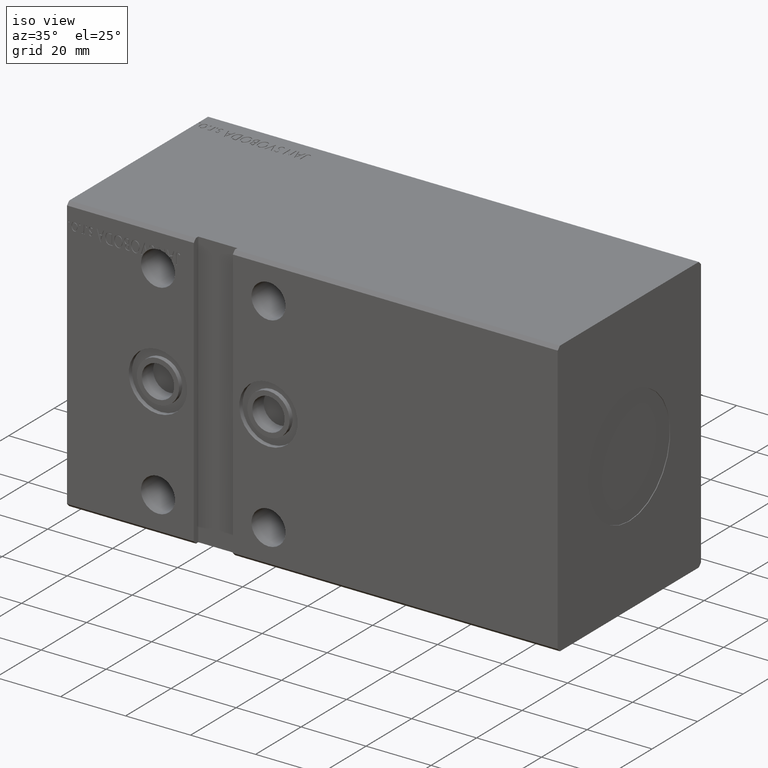
[diagram: clean part render]
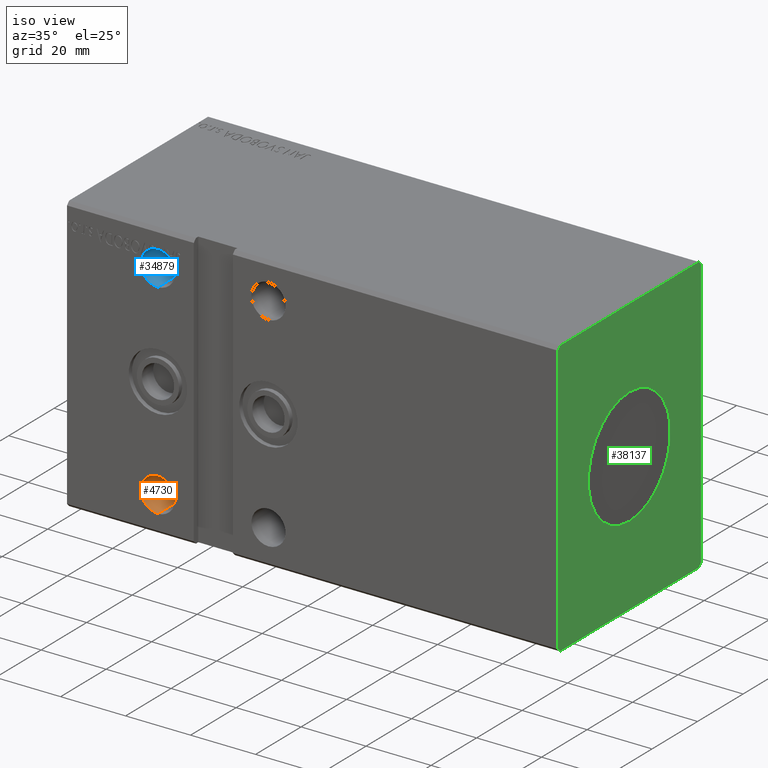
[diagram: same view with three faces highlighted in distinct colors, each labeled with its STEP entity id]
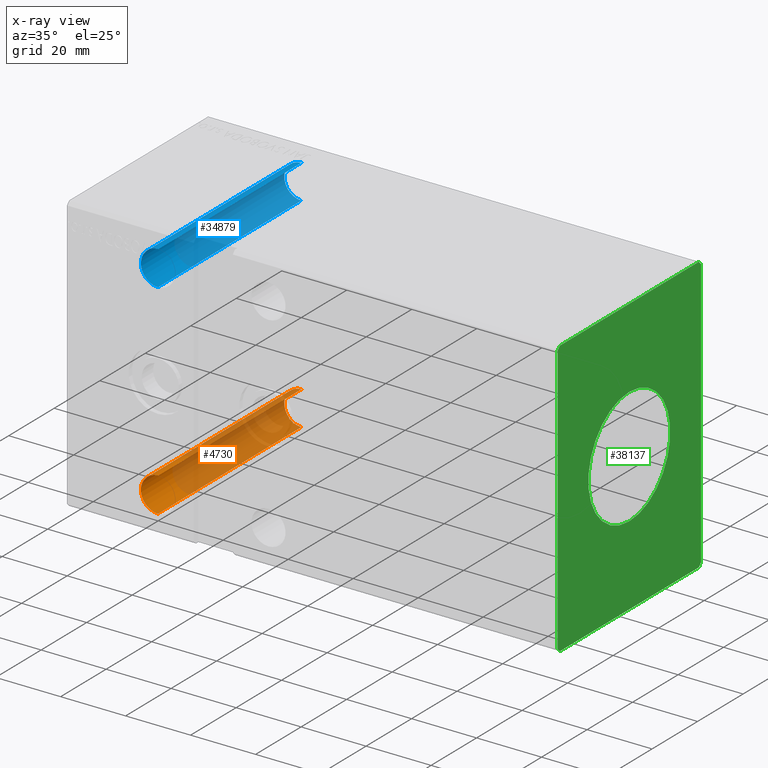
[diagram: x-ray of the same camera — body ghosted, the three highlighted faces saturated]
A machine part, iso view with three faces highlighted in distinct colors.
The next image is the same camera in x-ray (body ghosted, the three faces saturated) — at least one of them is partly hidden behind the body in this view.
Their STEP definitions:

[orange] entity #4730 — the highlighted cylindrical surface (edge-blend (fillet) strip) has radius 5.25 mm, axis along (-0, -1, -0).
#89 = CARTESIAN_POINT ( 'NONE',  ( 25.77627583546970413, 31.30000000000104166, -36.25579129484084717 ) ) ;
#557 = AXIS2_PLACEMENT_3D ( 'NONE', #18925, #15227, #40317 ) ;
#632 = VERTEX_POINT ( 'NONE', #89 ) ;
#848 = EDGE_CURVE ( 'NONE', #32619, #632, #28772, .T. ) ;
#1013 = DIRECTION ( 'NONE',  ( -0.000000000000000000, -1.000000000000000000, -5.507058653894625853E-17 ) ) ;
#1563 = LINE ( 'NONE', #23762, #14816 ) ;
#2833 = DIRECTION ( 'NONE',  ( 0.000000000000000000, 0.000000000000000000, 1.000000000000000000 ) ) ;
#3326 = VERTEX_POINT ( 'NONE', #24011 ) ;
#3644 = EDGE_CURVE ( 'NONE', #19377, #32619, #36803, .T. ) ;
#3668 = DIRECTION ( 'NONE',  ( -0.000000000000000000, 1.000000000000000000, 5.507058653894625853E-17 ) ) ;
#4078 = DIRECTION ( 'NONE',  ( 0.000000000000000000, 1.000000000000000000, 5.507058653894625853E-17 ) ) ;
#4330 = AXIS2_PLACEMENT_3D ( 'NONE', #25065, #3668, #31020 ) ;
#4730 = ADVANCED_FACE ( 'NONE', ( #30779 ), #5304, .F. ) ;
#5209 = DIRECTION ( 'NONE',  ( 0.000000000000000000, 0.000000000000000000, 1.000000000000000000 ) ) ;
#5304 = CYLINDRICAL_SURFACE ( 'NONE', #9091, 5.249999999999997335 ) ;
#5447 = CIRCLE ( 'NONE', #10707, 5.249999999999997335 ) ;
#5455 = CARTESIAN_POINT ( 'NONE',  ( 28.00000000000000355, -31.50000000000000000, -26.25000000000001066 ) ) ;
#6849 = ORIENTED_EDGE ( 'NONE', *, *, #848, .F. ) ;
#7435 = VECTOR ( 'NONE', #19842, 1000.000000000000000 ) ;
#7524 = CARTESIAN_POINT ( 'NONE',  ( 25.77627583546970413, 31.50000000000002842, -36.25579129484084717 ) ) ;
#8436 = EDGE_CURVE ( 'NONE', #19469, #39612, #25885, .T. ) ;
#8641 = CARTESIAN_POINT ( 'NONE',  ( 25.51590622482807547, 31.30000000000002203, -36.12512465952565321 ) ) ;
#8673 = EDGE_CURVE ( 'NONE', #31858, #20808, #30197, .T. ) ;
#8759 = EDGE_CURVE ( 'NONE', #3326, #25870, #25890, .T. ) ;
#9091 = AXIS2_PLACEMENT_3D ( 'NONE', #11863, #14951, #36952 ) ;
#9686 = VERTEX_POINT ( 'NONE', #29369 ) ;
#10231 = CIRCLE ( 'NONE', #4330, 5.249999999999997335 ) ;
#10542 = ORIENTED_EDGE ( 'NONE', *, *, #8759, .T. ) ;
#10707 = AXIS2_PLACEMENT_3D ( 'NONE', #31804, #25439, #2833 ) ;
#11035 = VECTOR ( 'NONE', #33703, 1000.000000000000000 ) ;
#11376 = CARTESIAN_POINT ( 'NONE',  ( 28.00000000000000355, 31.50000000000002842, -31.50000000000000000 ) ) ;
#11776 = CARTESIAN_POINT ( 'NONE',  ( 28.00000000000000355, 31.30000000000001492, -31.50000000000000000 ) ) ;
#11863 = CARTESIAN_POINT ( 'NONE',  ( 28.00000000000000355, 31.50000000000002842, -31.50000000000000000 ) ) ;
#12460 = AXIS2_PLACEMENT_3D ( 'NONE', #11376, #27590, #5209 ) ;
#12904 = ORIENTED_EDGE ( 'NONE', *, *, #8673, .T. ) ;
#14056 = DIRECTION ( 'NONE',  ( -0.000000000000000000, 1.000000000000000000, -0.000000000000000000 ) ) ;
#14262 = LINE ( 'NONE', #35852, #31173 ) ;
#14275 = DIRECTION ( 'NONE',  ( -0.000000000000000000, 1.000000000000000000, 5.507058653894625853E-17 ) ) ;
#14548 = ORIENTED_EDGE ( 'NONE', *, *, #20788, .F. ) ;
#14816 = VECTOR ( 'NONE', #23354, 1000.000000000000000 ) ;
#14951 = DIRECTION ( 'NONE',  ( -0.000000000000000000, -1.000000000000000000, -5.507058653894625853E-17 ) ) ;
#15227 = DIRECTION ( 'NONE',  ( -2.440028945803924563E-14, -1.000000000000000000, 9.345934926773710662E-13 ) ) ;
#15392 = CARTESIAN_POINT ( 'NONE',  ( 24.56673180715701932, 31.30000000000001492, -35.47179676167004914 ) ) ;
#17170 = CARTESIAN_POINT ( 'NONE',  ( 24.34017197029172763, 31.50000000000002842, -35.26406147571497485 ) ) ;
#17458 = ORIENTED_EDGE ( 'NONE', *, *, #36605, .T. ) ;
#18755 = DIRECTION ( 'NONE',  ( -9.912705577010331663E-15, 0.000000000000000000, -1.000000000000000000 ) ) ;
#18925 = CARTESIAN_POINT ( 'NONE',  ( 28.00000000000000355, 31.30000000000543281, -31.50000000000000000 ) ) ;
#19377 = VERTEX_POINT ( 'NONE', #33504 ) ;
#19469 = VERTEX_POINT ( 'NONE', #15392 ) ;
#19842 = DIRECTION ( 'NONE',  ( -0.000000000000000000, -1.000000000000000000, -5.507058653894625853E-17 ) ) ;
#20788 = EDGE_CURVE ( 'NONE', #31858, #21653, #1563, .T. ) ;
#20808 = VERTEX_POINT ( 'NONE', #7524 ) ;
#20850 = CARTESIAN_POINT ( 'NONE',  ( 28.00000000000000355, 31.50000000000002842, -31.50000000000000000 ) ) ;
#21276 = CARTESIAN_POINT ( 'NONE',  ( 28.00000000000000355, -31.50000000000000000, -36.75000000000000711 ) ) ;
#21653 = VERTEX_POINT ( 'NONE', #21276 ) ;
#21830 = DIRECTION ( 'NONE',  ( -0.000000000000000000, 1.000000000000000000, -0.000000000000000000 ) ) ;
#22735 = CARTESIAN_POINT ( 'NONE',  ( 24.56673180715701932, 31.50000000000002842, -35.47179676167004914 ) ) ;
#22995 = CARTESIAN_POINT ( 'NONE',  ( 28.00000000000000355, 31.50000000000002842, -26.25000000000000355 ) ) ;
#23211 = ORIENTED_EDGE ( 'NONE', *, *, #31158, .F. ) ;
#23354 = DIRECTION ( 'NONE',  ( -0.000000000000000000, -1.000000000000000000, -5.507058653894625853E-17 ) ) ;
#23762 = CARTESIAN_POINT ( 'NONE',  ( 28.00000000000000355, 31.50000000000002842, -36.75000000000000000 ) ) ;
#24011 = CARTESIAN_POINT ( 'NONE',  ( 28.00000000000000355, 31.50000000000002842, -26.25000000000000355 ) ) ;
#25065 = CARTESIAN_POINT ( 'NONE',  ( 28.00000000000000355, 31.50000000000002842, -31.50000000000000000 ) ) ;
#25439 = DIRECTION ( 'NONE',  ( 0.000000000000000000, -1.000000000000000000, -0.000000000000000000 ) ) ;
#25870 = VERTEX_POINT ( 'NONE', #5455 ) ;
#25885 = LINE ( 'NONE', #32243, #33423 ) ;
#25890 = LINE ( 'NONE', #22995, #34118 ) ;
#26097 = ORIENTED_EDGE ( 'NONE', *, *, #26809, .F. ) ;
#26809 = EDGE_CURVE ( 'NONE', #632, #20808, #14262, .T. ) ;
#26825 = DIRECTION ( 'NONE',  ( 0.000000000000000000, 0.000000000000000000, 1.000000000000000000 ) ) ;
#26954 = EDGE_CURVE ( 'NONE', #19469, #31531, #27917, .T. ) ;
#27445 = ORIENTED_EDGE ( 'NONE', *, *, #26954, .T. ) ;
#27590 = DIRECTION ( 'NONE',  ( -0.000000000000000000, 1.000000000000000000, 5.507058653894625853E-17 ) ) ;
#27917 = CIRCLE ( 'NONE', #29237, 5.249999999999997335 ) ;
#28217 = ORIENTED_EDGE ( 'NONE', *, *, #33120, .T. ) ;
#28472 = CIRCLE ( 'NONE', #37672, 5.249999999999997335 ) ;
#28748 = EDGE_LOOP ( 'NONE', ( #32661, #10542, #28217, #14548, #12904, #26097, #6849, #30889, #17458, #29818, #27445, #23211 ) ) ;
#28772 = CIRCLE ( 'NONE', #557, 5.249999999999997335 ) ;
#28884 = EDGE_CURVE ( 'NONE', #9686, #3326, #10231, .T. ) ;
#28941 = CARTESIAN_POINT ( 'NONE',  ( 24.34017197029172763, 31.30000000000001492, -35.26406147571497485 ) ) ;
#29237 = AXIS2_PLACEMENT_3D ( 'NONE', #11776, #21830, #18755 ) ;
#29369 = CARTESIAN_POINT ( 'NONE',  ( 24.34017197029172763, 31.50000000000002842, -35.26406147571497485 ) ) ;
#29818 = ORIENTED_EDGE ( 'NONE', *, *, #8436, .F. ) ;
#30197 = CIRCLE ( 'NONE', #12460, 5.249999999999997335 ) ;
#30779 = FACE_OUTER_BOUND ( 'NONE', #28748, .T. ) ;
#30889 = ORIENTED_EDGE ( 'NONE', *, *, #3644, .F. ) ;
#31020 = DIRECTION ( 'NONE',  ( 0.000000000000000000, 0.000000000000000000, 1.000000000000000000 ) ) ;
#31158 = EDGE_CURVE ( 'NONE', #9686, #31531, #35876, .T. ) ;
#31173 = VECTOR ( 'NONE', #14056, 1000.000000000000000 ) ;
#31531 = VERTEX_POINT ( 'NONE', #28941 ) ;
#31804 = CARTESIAN_POINT ( 'NONE',  ( 28.00000000000000355, -31.50000000000000000, -31.50000000000000711 ) ) ;
#31858 = VERTEX_POINT ( 'NONE', #36616 ) ;
#32243 = CARTESIAN_POINT ( 'NONE',  ( 24.56673180715701932, 31.50000000000002842, -35.47179676167004914 ) ) ;
#32619 = VERTEX_POINT ( 'NONE', #34426 ) ;
#32661 = ORIENTED_EDGE ( 'NONE', *, *, #28884, .T. ) ;
#33120 = EDGE_CURVE ( 'NONE', #25870, #21653, #5447, .T. ) ;
#33423 = VECTOR ( 'NONE', #4078, 1000.000000000000000 ) ;
#33504 = CARTESIAN_POINT ( 'NONE',  ( 25.51590622482809323, 31.50000000000002842, -36.12512465952563900 ) ) ;
#33703 = DIRECTION ( 'NONE',  ( 0.000000000000000000, -1.000000000000000000, 0.000000000000000000 ) ) ;
#34118 = VECTOR ( 'NONE', #1013, 1000.000000000000000 ) ;
#34426 = CARTESIAN_POINT ( 'NONE',  ( 25.51590622482808612, 31.30000000000117311, -36.12512465952563190 ) ) ;
#35852 = CARTESIAN_POINT ( 'NONE',  ( 25.77627583546970769, 31.30000000000002203, -36.25579129484084007 ) ) ;
#35876 = LINE ( 'NONE', #17170, #7435 ) ;
#36605 = EDGE_CURVE ( 'NONE', #19377, #39612, #28472, .T. ) ;
#36616 = CARTESIAN_POINT ( 'NONE',  ( 28.00000000000000355, 31.50000000000002842, -36.75000000000000000 ) ) ;
#36803 = LINE ( 'NONE', #8641, #11035 ) ;
#36952 = DIRECTION ( 'NONE',  ( 0.000000000000000000, 0.000000000000000000, -1.000000000000000000 ) ) ;
#37672 = AXIS2_PLACEMENT_3D ( 'NONE', #20850, #14275, #26825 ) ;
#39612 = VERTEX_POINT ( 'NONE', #22735 ) ;
#40317 = DIRECTION ( 'NONE',  ( -2.114710523095537274E-14, 9.344377123928406267E-13, 1.000000000000000000 ) ) ;

[blue] entity #34879 — the highlighted cylindrical surface (edge-blend (fillet) strip) has radius 5.25 mm, axis along (-0, -1, -0).
#232 = CARTESIAN_POINT ( 'NONE',  ( 24.56673180715701932, -31.30000000000002203, 35.47179676167004914 ) ) ;
#716 = DIRECTION ( 'NONE',  ( -0.000000000000000000, 1.000000000000000000, 0.000000000000000000 ) ) ;
#1058 = CARTESIAN_POINT ( 'NONE',  ( 24.34017197029172763, -31.30000000000002203, 35.26406147571498195 ) ) ;
#1147 = EDGE_CURVE ( 'NONE', #33408, #13343, #2092, .T. ) ;
#1919 = CIRCLE ( 'NONE', #30137, 5.249999999999997335 ) ;
#2092 = LINE ( 'NONE', #26971, #37982 ) ;
#2912 = CARTESIAN_POINT ( 'NONE',  ( 27.99999999999999645, -31.50000000000000000, 31.49999999999999289 ) ) ;
#2985 = EDGE_CURVE ( 'NONE', #16199, #13793, #1919, .T. ) ;
#3445 = EDGE_CURVE ( 'NONE', #8119, #13793, #25926, .T. ) ;
#3803 = DIRECTION ( 'NONE',  ( 0.000000000000000000, -1.000000000000000000, -5.507058653894625853E-17 ) ) ;
#4008 = CARTESIAN_POINT ( 'NONE',  ( 27.99999999999999645, 31.50000000000002842, 31.50000000000000000 ) ) ;
#4101 = EDGE_CURVE ( 'NONE', #34351, #30595, #24148, .T. ) ;
#4463 = AXIS2_PLACEMENT_3D ( 'NONE', #14896, #23556, #37506 ) ;
#4726 = CIRCLE ( 'NONE', #18503, 5.249999999999997335 ) ;
#4729 = CARTESIAN_POINT ( 'NONE',  ( 27.99999999999999645, -31.50000000000000000, 36.74999999999999289 ) ) ;
#4790 = DIRECTION ( 'NONE',  ( 0.000000000000000000, 0.000000000000000000, 1.000000000000000000 ) ) ;
#5193 = LINE ( 'NONE', #30063, #35087 ) ;
#5483 = ORIENTED_EDGE ( 'NONE', *, *, #4101, .T. ) ;
#5636 = CARTESIAN_POINT ( 'NONE',  ( 27.99999999999999645, 31.50000000000002842, 36.75000000000000000 ) ) ;
#5775 = EDGE_CURVE ( 'NONE', #8119, #13343, #39937, .T. ) ;
#5800 = AXIS2_PLACEMENT_3D ( 'NONE', #7374, #13749, #34722 ) ;
#6755 = CARTESIAN_POINT ( 'NONE',  ( 25.51590622482807902, -31.30000000000002203, 36.12512465952564611 ) ) ;
#6894 = DIRECTION ( 'NONE',  ( 0.000000000000000000, 0.000000000000000000, -1.000000000000000000 ) ) ;
#6964 = LINE ( 'NONE', #6755, #10444 ) ;
#7374 = CARTESIAN_POINT ( 'NONE',  ( 27.99999999999999645, -31.30000000000002203, 31.50000000000000000 ) ) ;
#7381 = AXIS2_PLACEMENT_3D ( 'NONE', #20031, #716, #13248 ) ;
#7725 = VERTEX_POINT ( 'NONE', #22882 ) ;
#8119 = VERTEX_POINT ( 'NONE', #1058 ) ;
#8263 = CARTESIAN_POINT ( 'NONE',  ( 27.99999999999999645, 31.50000000000002842, 26.25000000000000355 ) ) ;
#8401 = EDGE_CURVE ( 'NONE', #30595, #7725, #6964, .T. ) ;
#9344 = CIRCLE ( 'NONE', #7381, 5.249999999999997335 ) ;
#10064 = CARTESIAN_POINT ( 'NONE',  ( 27.99999999999999645, 31.50000000000002842, 31.50000000000000000 ) ) ;
#10444 = VECTOR ( 'NONE', #22787, 1000.000000000000000 ) ;
#10555 = ORIENTED_EDGE ( 'NONE', *, *, #38828, .T. ) ;
#11267 = VERTEX_POINT ( 'NONE', #25750 ) ;
#11489 = DIRECTION ( 'NONE',  ( 0.000000000000000000, 0.000000000000000000, -1.000000000000000000 ) ) ;
#12265 = EDGE_CURVE ( 'NONE', #12995, #23484, #22345, .T. ) ;
#12995 = VERTEX_POINT ( 'NONE', #5636 ) ;
#12997 = CARTESIAN_POINT ( 'NONE',  ( 25.51590622482807902, -31.30000000000002203, 36.12512465952564611 ) ) ;
#13248 = DIRECTION ( 'NONE',  ( 0.000000000000000000, 0.000000000000000000, 1.000000000000000000 ) ) ;
#13343 = VERTEX_POINT ( 'NONE', #232 ) ;
#13749 = DIRECTION ( 'NONE',  ( 0.000000000000000000, 1.000000000000000000, 0.000000000000000000 ) ) ;
#13793 = VERTEX_POINT ( 'NONE', #23583 ) ;
#14102 = CARTESIAN_POINT ( 'NONE',  ( 27.99999999999999645, 31.50000000000002842, 26.25000000000000355 ) ) ;
#14553 = LINE ( 'NONE', #27100, #15456 ) ;
#14896 = CARTESIAN_POINT ( 'NONE',  ( 27.99999999999999645, -31.30000000000544702, 31.50000000000000000 ) ) ;
#15456 = VECTOR ( 'NONE', #39640, 1000.000000000000000 ) ;
#15599 = ORIENTED_EDGE ( 'NONE', *, *, #12265, .F. ) ;
#15692 = ORIENTED_EDGE ( 'NONE', *, *, #20504, .T. ) ;
#15853 = DIRECTION ( 'NONE',  ( 0.000000000000000000, 0.000000000000000000, 1.000000000000000000 ) ) ;
#16199 = VERTEX_POINT ( 'NONE', #39534 ) ;
#16234 = ORIENTED_EDGE ( 'NONE', *, *, #16277, .F. ) ;
#16277 = EDGE_CURVE ( 'NONE', #11267, #18489, #4726, .T. ) ;
#16872 = CARTESIAN_POINT ( 'NONE',  ( 24.34017197029172763, 31.50000000000002842, 35.26406147571498195 ) ) ;
#17809 = EDGE_CURVE ( 'NONE', #33408, #7725, #9344, .T. ) ;
#17812 = CARTESIAN_POINT ( 'NONE',  ( 24.56673180715701932, -31.50000000000001421, 35.47179676167004203 ) ) ;
#18489 = VERTEX_POINT ( 'NONE', #4729 ) ;
#18503 = AXIS2_PLACEMENT_3D ( 'NONE', #2912, #31471, #15853 ) ;
#19019 = CARTESIAN_POINT ( 'NONE',  ( 25.77627583546970058, -31.30000000000105587, 36.25579129484084717 ) ) ;
#19803 = ORIENTED_EDGE ( 'NONE', *, *, #1147, .T. ) ;
#20031 = CARTESIAN_POINT ( 'NONE',  ( 27.99999999999999645, -31.50000000000000000, 31.49999999999999289 ) ) ;
#20504 = EDGE_CURVE ( 'NONE', #11267, #34351, #14553, .T. ) ;
#22345 = CIRCLE ( 'NONE', #26296, 5.249999999999997335 ) ;
#22787 = DIRECTION ( 'NONE',  ( -0.000000000000000000, -1.000000000000000000, -0.000000000000000000 ) ) ;
#22882 = CARTESIAN_POINT ( 'NONE',  ( 25.51590622482808612, -31.50000000000000000, 36.12512465952563190 ) ) ;
#23201 = AXIS2_PLACEMENT_3D ( 'NONE', #10064, #32057, #11489 ) ;
#23287 = CARTESIAN_POINT ( 'NONE',  ( 27.99999999999999645, -31.50000000000000000, 31.49999999999999289 ) ) ;
#23358 = DIRECTION ( 'NONE',  ( -0.000000000000000000, -1.000000000000000000, -5.507058653894625853E-17 ) ) ;
#23484 = VERTEX_POINT ( 'NONE', #8263 ) ;
#23556 = DIRECTION ( 'NONE',  ( 2.440028945803924563E-14, -1.000000000000000000, 9.345934926773710662E-13 ) ) ;
#23583 = CARTESIAN_POINT ( 'NONE',  ( 24.34017197029173118, -31.50000000000000000, 35.26406147571497485 ) ) ;
#24148 = CIRCLE ( 'NONE', #4463, 5.249999999999997335 ) ;
#25731 = EDGE_CURVE ( 'NONE', #23484, #16199, #36305, .T. ) ;
#25750 = CARTESIAN_POINT ( 'NONE',  ( 25.77627583546970769, -31.50000000000001421, 36.25579129484084717 ) ) ;
#25926 = LINE ( 'NONE', #16872, #30712 ) ;
#26098 = CYLINDRICAL_SURFACE ( 'NONE', #23201, 5.249999999999997335 ) ;
#26296 = AXIS2_PLACEMENT_3D ( 'NONE', #4008, #3803, #6894 ) ;
#26826 = ORIENTED_EDGE ( 'NONE', *, *, #17809, .F. ) ;
#26971 = CARTESIAN_POINT ( 'NONE',  ( 24.56673180715701932, 31.50000000000002842, 35.47179676167004914 ) ) ;
#27081 = ORIENTED_EDGE ( 'NONE', *, *, #5775, .F. ) ;
#27100 = CARTESIAN_POINT ( 'NONE',  ( 25.77627583546970769, -31.30000000000001492, 36.25579129484084717 ) ) ;
#27188 = DIRECTION ( 'NONE',  ( -0.000000000000000000, -1.000000000000000000, -5.507058653894625853E-17 ) ) ;
#28015 = ORIENTED_EDGE ( 'NONE', *, *, #8401, .T. ) ;
#29608 = DIRECTION ( 'NONE',  ( -0.000000000000000000, -1.000000000000000000, -5.507058653894625853E-17 ) ) ;
#30063 = CARTESIAN_POINT ( 'NONE',  ( 27.99999999999999645, 31.50000000000002842, 36.75000000000000000 ) ) ;
#30137 = AXIS2_PLACEMENT_3D ( 'NONE', #23287, #38703, #4790 ) ;
#30595 = VERTEX_POINT ( 'NONE', #12997 ) ;
#30712 = VECTOR ( 'NONE', #29608, 1000.000000000000000 ) ;
#30898 = ORIENTED_EDGE ( 'NONE', *, *, #2985, .F. ) ;
#31330 = ORIENTED_EDGE ( 'NONE', *, *, #25731, .F. ) ;
#31471 = DIRECTION ( 'NONE',  ( -0.000000000000000000, 1.000000000000000000, 0.000000000000000000 ) ) ;
#32057 = DIRECTION ( 'NONE',  ( -0.000000000000000000, -1.000000000000000000, -5.507058653894625853E-17 ) ) ;
#33408 = VERTEX_POINT ( 'NONE', #17812 ) ;
#34351 = VERTEX_POINT ( 'NONE', #19019 ) ;
#34561 = ORIENTED_EDGE ( 'NONE', *, *, #3445, .T. ) ;
#34722 = DIRECTION ( 'NONE',  ( 0.000000000000000000, 0.000000000000000000, 1.000000000000000000 ) ) ;
#34879 = ADVANCED_FACE ( 'NONE', ( #38235 ), #26098, .F. ) ;
#35087 = VECTOR ( 'NONE', #27188, 1000.000000000000000 ) ;
#35810 = DIRECTION ( 'NONE',  ( 0.000000000000000000, 1.000000000000000000, 5.507058653894625853E-17 ) ) ;
#36275 = EDGE_LOOP ( 'NONE', ( #15599, #10555, #16234, #15692, #5483, #28015, #26826, #19803, #27081, #34561, #30898, #31330 ) ) ;
#36305 = LINE ( 'NONE', #14102, #39087 ) ;
#37506 = DIRECTION ( 'NONE',  ( 0.000000000000000000, -9.344377123928406267E-13, -1.000000000000000000 ) ) ;
#37982 = VECTOR ( 'NONE', #35810, 1000.000000000000000 ) ;
#38235 = FACE_OUTER_BOUND ( 'NONE', #36275, .T. ) ;
#38703 = DIRECTION ( 'NONE',  ( -0.000000000000000000, 1.000000000000000000, 0.000000000000000000 ) ) ;
#38828 = EDGE_CURVE ( 'NONE', #12995, #18489, #5193, .T. ) ;
#39087 = VECTOR ( 'NONE', #23358, 1000.000000000000000 ) ;
#39534 = CARTESIAN_POINT ( 'NONE',  ( 27.99999999999999645, -31.50000000000000000, 26.25000000000000000 ) ) ;
#39640 = DIRECTION ( 'NONE',  ( 0.000000000000000000, 1.000000000000000000, 0.000000000000000000 ) ) ;
#39937 = CIRCLE ( 'NONE', #5800, 5.249999999999997335 ) ;

[green] entity #38137 — the highlighted planar face has unit normal (1, 0, 0).
#804 = LINE ( 'NONE', #34927, #15624 ) ;
#1143 = LINE ( 'NONE', #32588, #12681 ) ;
#1194 = EDGE_LOOP ( 'NONE', ( #40575, #12937 ) ) ;
#1799 = EDGE_CURVE ( 'NONE', #32118, #26272, #25602, .T. ) ;
#3237 = VERTEX_POINT ( 'NONE', #20818 ) ;
#4910 = DIRECTION ( 'NONE',  ( 0.000000000000000000, 1.000000000000000000, 0.000000000000000000 ) ) ;
#5605 = CARTESIAN_POINT ( 'NONE',  ( 151.0000000000000000, -31.50000000000000000, 41.49999999999999289 ) ) ;
#5765 = CARTESIAN_POINT ( 'NONE',  ( 151.0000000000000000, -31.50000000000000000, 41.49999999999999289 ) ) ;
#5812 = EDGE_CURVE ( 'NONE', #26272, #3237, #804, .T. ) ;
#5869 = EDGE_CURVE ( 'NONE', #23601, #9893, #30387, .T. ) ;
#6043 = EDGE_CURVE ( 'NONE', #35249, #14213, #22875, .T. ) ;
#6763 = DIRECTION ( 'NONE',  ( 0.000000000000000000, 0.000000000000000000, 1.000000000000000000 ) ) ;
#7515 = ORIENTED_EDGE ( 'NONE', *, *, #39354, .T. ) ;
#7719 = DIRECTION ( 'NONE',  ( 0.000000000000000000, -0.7071067811865462405, -0.7071067811865489050 ) ) ;
#8260 = ORIENTED_EDGE ( 'NONE', *, *, #31200, .T. ) ;
#8404 = LINE ( 'NONE', #26701, #33790 ) ;
#8665 = EDGE_CURVE ( 'NONE', #17343, #23601, #30680, .T. ) ;
#9117 = VECTOR ( 'NONE', #14560, 1000.000000000000114 ) ;
#9655 = CARTESIAN_POINT ( 'NONE',  ( 151.0000000000000000, -31.50000000000000000, -41.50000000000000711 ) ) ;
#9893 = VERTEX_POINT ( 'NONE', #30390 ) ;
#10078 = DIRECTION ( 'NONE',  ( 1.000000000000000000, 0.000000000000000000, 0.000000000000000000 ) ) ;
#10187 = DIRECTION ( 'NONE',  ( 0.000000000000000000, 0.7071067811865462405, 0.7071067811865489050 ) ) ;
#10290 = DIRECTION ( 'NONE',  ( 0.000000000000000000, 0.000000000000000000, -1.000000000000000000 ) ) ;
#10418 = VECTOR ( 'NONE', #10187, 999.9999999999998863 ) ;
#10797 = VECTOR ( 'NONE', #17166, 1000.000000000000000 ) ;
#10913 = VERTEX_POINT ( 'NONE', #38143 ) ;
#11483 = CARTESIAN_POINT ( 'NONE',  ( 151.0000000000000000, -31.50000000000000000, -41.50000000000000711 ) ) ;
#12681 = VECTOR ( 'NONE', #7719, 999.9999999999998863 ) ;
#12937 = ORIENTED_EDGE ( 'NONE', *, *, #13383, .F. ) ;
#13146 = EDGE_LOOP ( 'NONE', ( #7515, #17176, #8260, #18690, #37932, #22067, #28374, #17598 ) ) ;
#13296 = CARTESIAN_POINT ( 'NONE',  ( 151.0000000000000000, 0.000000000000000000, -18.00000000000000000 ) ) ;
#13383 = EDGE_CURVE ( 'NONE', #14213, #35249, #15155, .T. ) ;
#13840 = AXIS2_PLACEMENT_3D ( 'NONE', #25310, #40124, #40326 ) ;
#14138 = VERTEX_POINT ( 'NONE', #37434 ) ;
#14213 = VERTEX_POINT ( 'NONE', #27564 ) ;
#14560 = DIRECTION ( 'NONE',  ( 0.000000000000000000, 0.7071067811865451302, -0.7071067811865500152 ) ) ;
#14755 = VECTOR ( 'NONE', #23604, 1000.000000000000114 ) ;
#15155 = CIRCLE ( 'NONE', #13840, 18.00000000000000000 ) ;
#15624 = VECTOR ( 'NONE', #6763, 1000.000000000000000 ) ;
#16691 = AXIS2_PLACEMENT_3D ( 'NONE', #19331, #10078, #10290 ) ;
#16738 = DIRECTION ( 'NONE',  ( 0.000000000000000000, 0.000000000000000000, -1.000000000000000000 ) ) ;
#17166 = DIRECTION ( 'NONE',  ( 0.000000000000000000, -1.000000000000000000, 0.000000000000000000 ) ) ;
#17176 = ORIENTED_EDGE ( 'NONE', *, *, #37430, .T. ) ;
#17343 = VERTEX_POINT ( 'NONE', #5765 ) ;
#17574 = LINE ( 'NONE', #23745, #10797 ) ;
#17598 = ORIENTED_EDGE ( 'NONE', *, *, #5812, .T. ) ;
#18690 = ORIENTED_EDGE ( 'NONE', *, *, #8665, .T. ) ;
#19331 = CARTESIAN_POINT ( 'NONE',  ( 151.0000000000000000, 0.000000000000000000, 0.000000000000000000 ) ) ;
#19963 = CARTESIAN_POINT ( 'NONE',  ( 151.0000000000000000, 31.50000000000001421, -41.50000000000000711 ) ) ;
#20818 = CARTESIAN_POINT ( 'NONE',  ( 151.0000000000000000, 31.50000000000001421, 41.49999999999999289 ) ) ;
#22067 = ORIENTED_EDGE ( 'NONE', *, *, #25409, .T. ) ;
#22875 = CIRCLE ( 'NONE', #26859, 18.00000000000000000 ) ;
#23601 = VERTEX_POINT ( 'NONE', #9655 ) ;
#23604 = DIRECTION ( 'NONE',  ( 0.000000000000000000, -0.7071067811865474617, 0.7071067811865474617 ) ) ;
#23745 = CARTESIAN_POINT ( 'NONE',  ( 151.0000000000000000, 30.50000000000001421, 42.49999999999999289 ) ) ;
#25310 = CARTESIAN_POINT ( 'NONE',  ( 151.0000000000000000, 0.000000000000000000, 0.000000000000000000 ) ) ;
#25397 = CARTESIAN_POINT ( 'NONE',  ( 151.0000000000000000, 30.50000000000001776, -42.50000000000000711 ) ) ;
#25409 = EDGE_CURVE ( 'NONE', #9893, #32118, #8404, .T. ) ;
#25602 = LINE ( 'NONE', #25397, #10418 ) ;
#26272 = VERTEX_POINT ( 'NONE', #19963 ) ;
#26281 = CARTESIAN_POINT ( 'NONE',  ( 151.0000000000000000, 31.50000000000001421, 41.49999999999999289 ) ) ;
#26397 = DIRECTION ( 'NONE',  ( 1.000000000000000000, 0.000000000000000000, 0.000000000000000000 ) ) ;
#26701 = CARTESIAN_POINT ( 'NONE',  ( 151.0000000000000000, -30.50000000000000711, -42.50000000000000711 ) ) ;
#26859 = AXIS2_PLACEMENT_3D ( 'NONE', #29471, #26397, #16738 ) ;
#26922 = VECTOR ( 'NONE', #36254, 1000.000000000000000 ) ;
#27564 = CARTESIAN_POINT ( 'NONE',  ( 151.0000000000000000, 2.204364238465235428E-15, 18.00000000000000000 ) ) ;
#28374 = ORIENTED_EDGE ( 'NONE', *, *, #1799, .T. ) ;
#28574 = FACE_BOUND ( 'NONE', #1194, .T. ) ;
#29471 = CARTESIAN_POINT ( 'NONE',  ( 151.0000000000000000, 0.000000000000000000, 0.000000000000000000 ) ) ;
#29756 = LINE ( 'NONE', #26281, #14755 ) ;
#30387 = LINE ( 'NONE', #11483, #9117 ) ;
#30390 = CARTESIAN_POINT ( 'NONE',  ( 151.0000000000000000, -30.50000000000000711, -42.50000000000000711 ) ) ;
#30680 = LINE ( 'NONE', #5605, #26922 ) ;
#30789 = CARTESIAN_POINT ( 'NONE',  ( 151.0000000000000000, 30.50000000000001776, -42.50000000000000711 ) ) ;
#31200 = EDGE_CURVE ( 'NONE', #14138, #17343, #1143, .T. ) ;
#31655 = FACE_OUTER_BOUND ( 'NONE', #13146, .T. ) ;
#32118 = VERTEX_POINT ( 'NONE', #30789 ) ;
#32588 = CARTESIAN_POINT ( 'NONE',  ( 151.0000000000000000, -30.50000000000000355, 42.49999999999999289 ) ) ;
#33790 = VECTOR ( 'NONE', #4910, 1000.000000000000000 ) ;
#34927 = CARTESIAN_POINT ( 'NONE',  ( 151.0000000000000000, 31.50000000000001421, -41.50000000000000711 ) ) ;
#35249 = VERTEX_POINT ( 'NONE', #13296 ) ;
#36254 = DIRECTION ( 'NONE',  ( 0.000000000000000000, 0.000000000000000000, -1.000000000000000000 ) ) ;
#37430 = EDGE_CURVE ( 'NONE', #10913, #14138, #17574, .T. ) ;
#37434 = CARTESIAN_POINT ( 'NONE',  ( 151.0000000000000000, -30.50000000000000355, 42.49999999999999289 ) ) ;
#37932 = ORIENTED_EDGE ( 'NONE', *, *, #5869, .T. ) ;
#38137 = ADVANCED_FACE ( 'NONE', ( #28574, #31655 ), #38453, .T. ) ;
#38143 = CARTESIAN_POINT ( 'NONE',  ( 151.0000000000000000, 30.50000000000001421, 42.49999999999999289 ) ) ;
#38453 = PLANE ( 'NONE',  #16691 ) ;
#39354 = EDGE_CURVE ( 'NONE', #3237, #10913, #29756, .T. ) ;
#40124 = DIRECTION ( 'NONE',  ( 1.000000000000000000, 0.000000000000000000, 0.000000000000000000 ) ) ;
#40326 = DIRECTION ( 'NONE',  ( 0.000000000000000000, 0.000000000000000000, -1.000000000000000000 ) ) ;
#40575 = ORIENTED_EDGE ( 'NONE', *, *, #6043, .F. ) ;